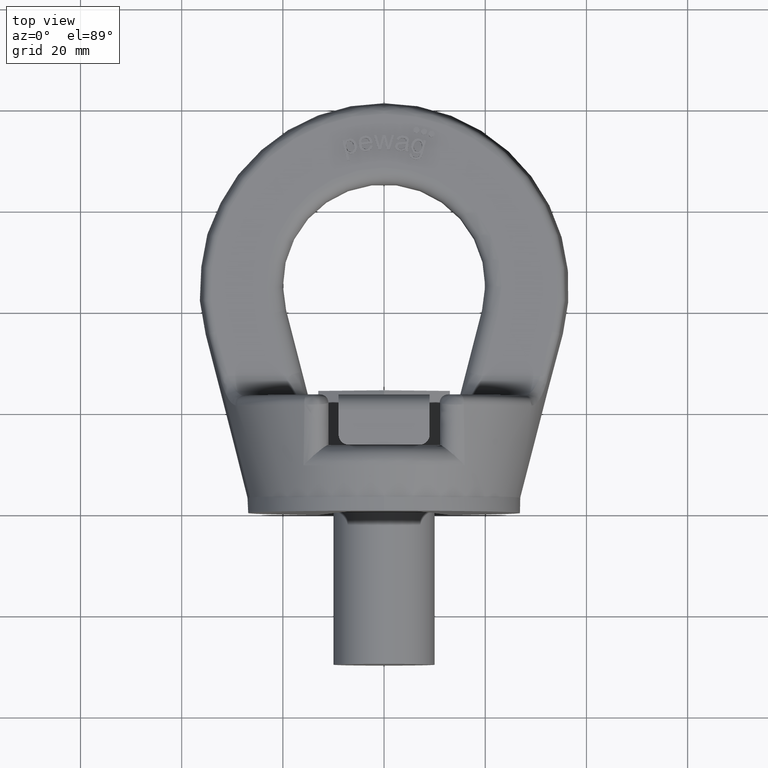
[diagram: clean part render]
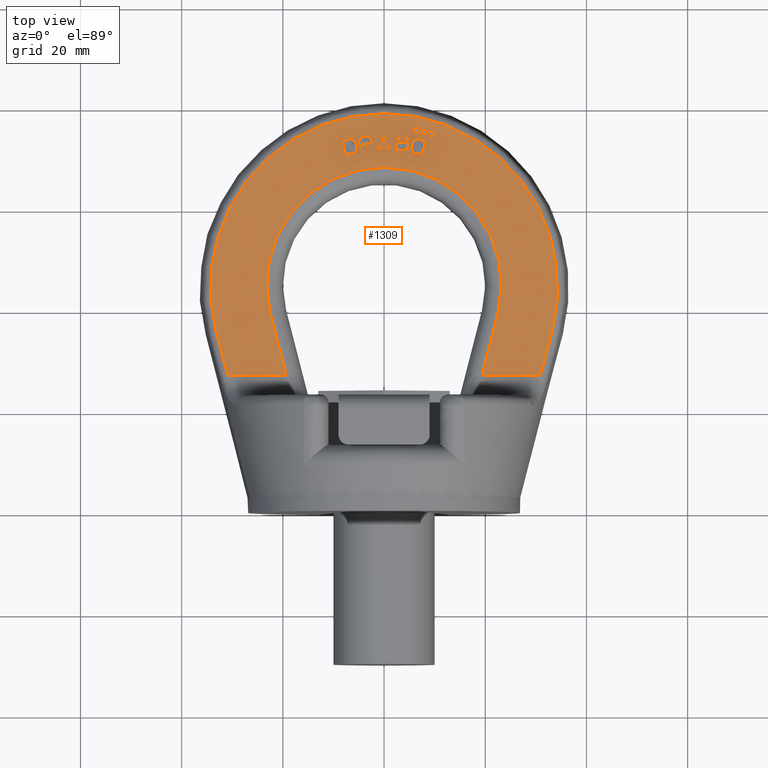
[diagram: same view with one face highlighted and labeled with its STEP entity id]
A machine part, top view. The second image highlights one B-rep face of the part: STEP entity #1309.
In plain terms, the highlighted planar face has unit normal (0, -0, -1).
Its self-contained STEP definition (entity closure, byte-faithful):
#1309=ADVANCED_FACE('',(#1756,#1757,#1758,#1759,#1760,#1761,#1762,#1763,
#1764),#1548,.F.);
#1548=PLANE('',#5122);
#1666=CIRCLE('',#5117,0.6);
#1667=CIRCLE('',#5118,0.6);
#1668=CIRCLE('',#5119,0.6);
#1669=CIRCLE('',#5120,23.2);
#1670=CIRCLE('',#5121,34.3081622941247);
#1756=FACE_BOUND('',#1812,.T.);
#1757=FACE_BOUND('',#1813,.T.);
#1758=FACE_BOUND('',#1814,.T.);
#1759=FACE_BOUND('',#1815,.T.);
#1760=FACE_BOUND('',#1816,.T.);
#1761=FACE_BOUND('',#1817,.T.);
#1762=FACE_BOUND('',#1818,.T.);
#1763=FACE_BOUND('',#1819,.T.);
#1764=FACE_BOUND('',#1820,.T.);
#1812=EDGE_LOOP('',(#2702,#2703,#2704,#2705,#2706,#2707,#2708));
#1813=EDGE_LOOP('',(#2709,#2710,#2711,#2712,#2713,#2714,#2715,#2716,#2717,
#2718,#2719,#2720,#2721,#2722,#2723));
#1814=EDGE_LOOP('',(#2724,#2725,#2726,#2727,#2728));
#1815=EDGE_LOOP('',(#2729));
#1816=EDGE_LOOP('',(#2730));
#1817=EDGE_LOOP('',(#2731));
#1818=EDGE_LOOP('',(#2732,#2733,#2734,#2735,#2736,#2737,#2738,#2739));
#1819=EDGE_LOOP('',(#2740,#2741,#2742,#2743,#2744,#2745));
#1820=EDGE_LOOP('',(#2746,#2747,#2748,#2749,#2750,#2751,#2752,#2753,#2754));
#2086=LINE('',#6270,#2366);
#2087=LINE('',#6302,#2367);
#2088=LINE('',#6304,#2368);
#2089=LINE('',#6305,#2369);
#2090=LINE('',#6308,#2370);
#2091=LINE('',#6310,#2371);
#2092=LINE('',#6312,#2372);
#2093=LINE('',#6326,#2373);
#2094=LINE('',#6328,#2374);
#2095=LINE('',#6344,#2375);
#2096=LINE('',#6346,#2376);
#2097=LINE('',#6348,#2377);
#2098=LINE('',#6350,#2378);
#2099=LINE('',#6352,#2379);
#2100=LINE('',#6368,#2380);
#2101=LINE('',#6391,#2381);
#2102=LINE('',#6401,#2382);
#2103=LINE('',#6403,#2383);
#2104=LINE('',#6417,#2384);
#2105=LINE('',#6419,#2385);
#2106=LINE('',#6420,#2386);
#2107=LINE('',#6423,#2387);
#2108=LINE('',#6425,#2388);
#2109=LINE('',#6427,#2389);
#2110=LINE('',#6429,#2390);
#2111=LINE('',#6453,#2391);
#2112=LINE('',#6498,#2392);
#2366=VECTOR('',#5384,1.);
#2367=VECTOR('',#5385,1.);
#2368=VECTOR('',#5386,1.);
#2369=VECTOR('',#5387,1.);
#2370=VECTOR('',#5388,1.);
#2371=VECTOR('',#5389,1.);
#2372=VECTOR('',#5390,1.);
#2373=VECTOR('',#5391,1.);
#2374=VECTOR('',#5392,1.);
#2375=VECTOR('',#5393,1.);
#2376=VECTOR('',#5394,1.);
#2377=VECTOR('',#5395,1.);
#2378=VECTOR('',#5396,1.);
#2379=VECTOR('',#5397,1.);
#2380=VECTOR('',#5398,1.);
#2381=VECTOR('',#5399,1.);
#2382=VECTOR('',#5408,1.);
#2383=VECTOR('',#5409,1.);
#2384=VECTOR('',#5412,1.);
#2385=VECTOR('',#5413,1.);
#2386=VECTOR('',#5414,1.);
#2387=VECTOR('',#5415,1.);
#2388=VECTOR('',#5416,1.);
#2389=VECTOR('',#5417,1.);
#2390=VECTOR('',#5418,1.);
#2391=VECTOR('',#5419,1.);
#2392=VECTOR('',#5420,1.);
#2702=ORIENTED_EDGE('',*,*,#4266,.T.);
#2703=ORIENTED_EDGE('',*,*,#4267,.T.);
#2704=ORIENTED_EDGE('',*,*,#4268,.T.);
#2705=ORIENTED_EDGE('',*,*,#4269,.T.);
#2706=ORIENTED_EDGE('',*,*,#4270,.T.);
#2707=ORIENTED_EDGE('',*,*,#4271,.T.);
#2708=ORIENTED_EDGE('',*,*,#4272,.T.);
#2709=ORIENTED_EDGE('',*,*,#4273,.T.);
#2710=ORIENTED_EDGE('',*,*,#4274,.T.);
#2711=ORIENTED_EDGE('',*,*,#4275,.T.);
#2712=ORIENTED_EDGE('',*,*,#4276,.T.);
#2713=ORIENTED_EDGE('',*,*,#4277,.T.);
#2714=ORIENTED_EDGE('',*,*,#4278,.T.);
#2715=ORIENTED_EDGE('',*,*,#4279,.T.);
#2716=ORIENTED_EDGE('',*,*,#4280,.T.);
#2717=ORIENTED_EDGE('',*,*,#4281,.T.);
#2718=ORIENTED_EDGE('',*,*,#4282,.T.);
#2719=ORIENTED_EDGE('',*,*,#4283,.T.);
#2720=ORIENTED_EDGE('',*,*,#4284,.T.);
#2721=ORIENTED_EDGE('',*,*,#4285,.T.);
#2722=ORIENTED_EDGE('',*,*,#4286,.T.);
#2723=ORIENTED_EDGE('',*,*,#4287,.T.);
#2724=ORIENTED_EDGE('',*,*,#4288,.T.);
#2725=ORIENTED_EDGE('',*,*,#4289,.T.);
#2726=ORIENTED_EDGE('',*,*,#4290,.T.);
#2727=ORIENTED_EDGE('',*,*,#4291,.T.);
#2728=ORIENTED_EDGE('',*,*,#4292,.T.);
#2729=ORIENTED_EDGE('',*,*,#4293,.F.);
#2730=ORIENTED_EDGE('',*,*,#4294,.F.);
#2731=ORIENTED_EDGE('',*,*,#4295,.F.);
#2732=ORIENTED_EDGE('',*,*,#4296,.T.);
#2733=ORIENTED_EDGE('',*,*,#4297,.T.);
#2734=ORIENTED_EDGE('',*,*,#4298,.T.);
#2735=ORIENTED_EDGE('',*,*,#4299,.T.);
#2736=ORIENTED_EDGE('',*,*,#4300,.T.);
#2737=ORIENTED_EDGE('',*,*,#4301,.T.);
#2738=ORIENTED_EDGE('',*,*,#4302,.T.);
#2739=ORIENTED_EDGE('',*,*,#4303,.T.);
#2740=ORIENTED_EDGE('',*,*,#4304,.T.);
#2741=ORIENTED_EDGE('',*,*,#4305,.T.);
#2742=ORIENTED_EDGE('',*,*,#4306,.T.);
#2743=ORIENTED_EDGE('',*,*,#4307,.T.);
#2744=ORIENTED_EDGE('',*,*,#4308,.T.);
#2745=ORIENTED_EDGE('',*,*,#4309,.T.);
#2746=ORIENTED_EDGE('',*,*,#4310,.T.);
#2747=ORIENTED_EDGE('',*,*,#4311,.T.);
#2748=ORIENTED_EDGE('',*,*,#4312,.T.);
#2749=ORIENTED_EDGE('',*,*,#4313,.T.);
#2750=ORIENTED_EDGE('',*,*,#4314,.T.);
#2751=ORIENTED_EDGE('',*,*,#4315,.T.);
#2752=ORIENTED_EDGE('',*,*,#4316,.T.);
#2753=ORIENTED_EDGE('',*,*,#4317,.T.);
#2754=ORIENTED_EDGE('',*,*,#4318,.T.);
#3878=VERTEX_POINT('',#6263);
#3879=VERTEX_POINT('',#6264);
#3880=VERTEX_POINT('',#6269);
#3881=VERTEX_POINT('',#6271);
#3882=VERTEX_POINT('',#6284);
#3883=VERTEX_POINT('',#6301);
#3884=VERTEX_POINT('',#6303);
#3885=VERTEX_POINT('',#6306);
#3886=VERTEX_POINT('',#6307);
#3887=VERTEX_POINT('',#6309);
#3888=VERTEX_POINT('',#6311);
#3889=VERTEX_POINT('',#6313);
#3890=VERTEX_POINT('',#6320);
#3891=VERTEX_POINT('',#6325);
#3892=VERTEX_POINT('',#6327);
#3893=VERTEX_POINT('',#6329);
#3894=VERTEX_POINT('',#6336);
#3895=VERTEX_POINT('',#6343);
#3896=VERTEX_POINT('',#6345);
#3897=VERTEX_POINT('',#6347);
#3898=VERTEX_POINT('',#6349);
#3899=VERTEX_POINT('',#6351);
#3900=VERTEX_POINT('',#6361);
#3901=VERTEX_POINT('',#6362);
#3902=VERTEX_POINT('',#6367);
#3903=VERTEX_POINT('',#6369);
#3904=VERTEX_POINT('',#6390);
#3905=VERTEX_POINT('',#6393);
#3906=VERTEX_POINT('',#6395);
#3907=VERTEX_POINT('',#6397);
#3908=VERTEX_POINT('',#6399);
#3909=VERTEX_POINT('',#6400);
#3910=VERTEX_POINT('',#6402);
#3911=VERTEX_POINT('',#6404);
#3912=VERTEX_POINT('',#6409);
#3913=VERTEX_POINT('',#6411);
#3914=VERTEX_POINT('',#6416);
#3915=VERTEX_POINT('',#6418);
#3916=VERTEX_POINT('',#6421);
#3917=VERTEX_POINT('',#6422);
#3918=VERTEX_POINT('',#6424);
#3919=VERTEX_POINT('',#6426);
#3920=VERTEX_POINT('',#6428);
#3921=VERTEX_POINT('',#6430);
#3922=VERTEX_POINT('',#6454);
#3923=VERTEX_POINT('',#6455);
#3924=VERTEX_POINT('',#6460);
#3925=VERTEX_POINT('',#6477);
#3926=VERTEX_POINT('',#6484);
#3927=VERTEX_POINT('',#6497);
#3928=VERTEX_POINT('',#6499);
#3929=VERTEX_POINT('',#6504);
#3930=VERTEX_POINT('',#6517);
#4266=EDGE_CURVE('',#3878,#3879,#4854,.T.);
#4267=EDGE_CURVE('',#3879,#3880,#4855,.T.);
#4268=EDGE_CURVE('',#3880,#3881,#2086,.T.);
#4269=EDGE_CURVE('',#3881,#3882,#4856,.T.);
#4270=EDGE_CURVE('',#3882,#3883,#4857,.T.);
#4271=EDGE_CURVE('',#3883,#3884,#2087,.T.);
#4272=EDGE_CURVE('',#3884,#3878,#2088,.T.);
#4273=EDGE_CURVE('',#3885,#3886,#2089,.T.);
#4274=EDGE_CURVE('',#3886,#3887,#2090,.T.);
#4275=EDGE_CURVE('',#3887,#3888,#2091,.T.);
#4276=EDGE_CURVE('',#3888,#3889,#2092,.T.);
#4277=EDGE_CURVE('',#3889,#3890,#4858,.T.);
#4278=EDGE_CURVE('',#3890,#3891,#4859,.T.);
#4279=EDGE_CURVE('',#3891,#3892,#2093,.T.);
#4280=EDGE_CURVE('',#3892,#3893,#2094,.T.);
#4281=EDGE_CURVE('',#3893,#3894,#4860,.T.);
#4282=EDGE_CURVE('',#3894,#3895,#4861,.T.);
#4283=EDGE_CURVE('',#3895,#3896,#2095,.T.);
#4284=EDGE_CURVE('',#3896,#3897,#2096,.T.);
#4285=EDGE_CURVE('',#3897,#3898,#2097,.T.);
#4286=EDGE_CURVE('',#3898,#3899,#2098,.T.);
#4287=EDGE_CURVE('',#3899,#3885,#2099,.T.);
#4288=EDGE_CURVE('',#3900,#3901,#4862,.T.);
#4289=EDGE_CURVE('',#3901,#3902,#4863,.T.);
#4290=EDGE_CURVE('',#3902,#3903,#2100,.T.);
#4291=EDGE_CURVE('',#3903,#3904,#4864,.T.);
#4292=EDGE_CURVE('',#3904,#3900,#2101,.T.);
#4293=EDGE_CURVE('',#3905,#3905,#1666,.T.);
#4294=EDGE_CURVE('',#3906,#3906,#1667,.T.);
#4295=EDGE_CURVE('',#3907,#3907,#1668,.T.);
#4296=EDGE_CURVE('',#3908,#3909,#1669,.T.);
#4297=EDGE_CURVE('',#3909,#3910,#2102,.T.);
#4298=EDGE_CURVE('',#3910,#3911,#2103,.T.);
#4299=EDGE_CURVE('',#3911,#3912,#4865,.T.);
#4300=EDGE_CURVE('',#3912,#3913,#1670,.T.);
#4301=EDGE_CURVE('',#3913,#3914,#4866,.T.);
#4302=EDGE_CURVE('',#3914,#3915,#2104,.T.);
#4303=EDGE_CURVE('',#3915,#3908,#2105,.T.);
#4304=EDGE_CURVE('',#3916,#3917,#2106,.T.);
#4305=EDGE_CURVE('',#3917,#3918,#2107,.T.);
#4306=EDGE_CURVE('',#3918,#3919,#2108,.T.);
#4307=EDGE_CURVE('',#3919,#3920,#2109,.T.);
#4308=EDGE_CURVE('',#3920,#3921,#2110,.T.);
#4309=EDGE_CURVE('',#3921,#3916,#4867,.T.);
#4310=EDGE_CURVE('',#3922,#3923,#2111,.T.);
#4311=EDGE_CURVE('',#3923,#3924,#4868,.T.);
#4312=EDGE_CURVE('',#3924,#3925,#4869,.T.);
#4313=EDGE_CURVE('',#3925,#3926,#4870,.T.);
#4314=EDGE_CURVE('',#3926,#3927,#4871,.T.);
#4315=EDGE_CURVE('',#3927,#3928,#2112,.T.);
#4316=EDGE_CURVE('',#3928,#3929,#4872,.T.);
#4317=EDGE_CURVE('',#3929,#3930,#4873,.T.);
#4318=EDGE_CURVE('',#3930,#3922,#4874,.T.);
#4854=B_SPLINE_CURVE_WITH_KNOTS('',3,(#6251,#6252,#6253,#6254,#6255,#6256,
#6257,#6258,#6259,#6260,#6261,#6262),.UNSPECIFIED.,.F.,.F.,(4,2,2,2,2,4),
(0.,0.305645754892089,0.470829306249211,0.636012857606333,0.802206343843955,
1.),.UNSPECIFIED.);
#4855=B_SPLINE_CURVE_WITH_KNOTS('',3,(#6265,#6266,#6267,#6268),
 .UNSPECIFIED.,.F.,.F.,(4,4),(0.,1.),.UNSPECIFIED.);
#4856=B_SPLINE_CURVE_WITH_KNOTS('',3,(#6272,#6273,#6274,#6275,#6276,#6277,
#6278,#6279,#6280,#6281,#6282,#6283),.UNSPECIFIED.,.F.,.F.,(4,2,2,2,2,4),
(0.,0.163304651309284,0.382303784248524,0.619375661168187,0.85644753808786,
1.),.UNSPECIFIED.);
#4857=B_SPLINE_CURVE_WITH_KNOTS('',3,(#6285,#6286,#6287,#6288,#6289,#6290,
#6291,#6292,#6293,#6294,#6295,#6296,#6297,#6298,#6299,#6300),
 .UNSPECIFIED.,.F.,.F.,(4,2,2,2,2,2,2,4),(0.,0.139503666745451,0.312880428291714,
0.486257189837977,0.605370995480449,0.72385410568907,0.842337215897691,
1.),.UNSPECIFIED.);
#4858=B_SPLINE_CURVE_WITH_KNOTS('',3,(#6314,#6315,#6316,#6317,#6318,#6319),
 .UNSPECIFIED.,.F.,.F.,(4,2,4),(0.,0.728909607654966,1.),.UNSPECIFIED.);
#4859=B_SPLINE_CURVE_WITH_KNOTS('',3,(#6321,#6322,#6323,#6324),
 .UNSPECIFIED.,.F.,.F.,(4,4),(0.,1.),.UNSPECIFIED.);
#4860=B_SPLINE_CURVE_WITH_KNOTS('',3,(#6330,#6331,#6332,#6333,#6334,#6335),
 .UNSPECIFIED.,.F.,.F.,(4,2,4),(0.,0.752082276025117,1.),.UNSPECIFIED.);
#4861=B_SPLINE_CURVE_WITH_KNOTS('',3,(#6337,#6338,#6339,#6340,#6341,#6342),
 .UNSPECIFIED.,.F.,.F.,(4,2,4),(0.,0.250451922487273,1.),.UNSPECIFIED.);
#4862=B_SPLINE_CURVE_WITH_KNOTS('',3,(#6353,#6354,#6355,#6356,#6357,#6358,
#6359,#6360),.UNSPECIFIED.,.F.,.F.,(4,2,2,4),(0.,0.36347796861322,0.728087675912443,
1.),.UNSPECIFIED.);
#4863=B_SPLINE_CURVE_WITH_KNOTS('',3,(#6363,#6364,#6365,#6366),
 .UNSPECIFIED.,.F.,.F.,(4,4),(0.,1.),.UNSPECIFIED.);
#4864=B_SPLINE_CURVE_WITH_KNOTS('',3,(#6370,#6371,#6372,#6373,#6374,#6375,
#6376,#6377,#6378,#6379,#6380,#6381,#6382,#6383,#6384,#6385,#6386,#6387,
#6388,#6389),.UNSPECIFIED.,.F.,.F.,(4,2,2,2,2,2,2,2,2,4),(0.,0.102921203122042,
0.206156274885328,0.336063021724234,0.465707475917732,0.599570296299742,
0.733433116681749,0.862845255056168,0.992257393430591,1.),.UNSPECIFIED.);
#4865=B_SPLINE_CURVE_WITH_KNOTS('',3,(#6405,#6406,#6407,#6408),
 .UNSPECIFIED.,.F.,.F.,(4,4),(0.,1.),.UNSPECIFIED.);
#4866=B_SPLINE_CURVE_WITH_KNOTS('',3,(#6412,#6413,#6414,#6415),
 .UNSPECIFIED.,.F.,.F.,(4,4),(0.,1.),.UNSPECIFIED.);
#4867=B_SPLINE_CURVE_WITH_KNOTS('',3,(#6431,#6432,#6433,#6434,#6435,#6436,
#6437,#6438,#6439,#6440,#6441,#6442,#6443,#6444,#6445,#6446,#6447,#6448,
#6449,#6450,#6451,#6452),.UNSPECIFIED.,.F.,.F.,(4,2,2,2,2,2,2,2,2,2,4),
(0.,0.0830854503763923,0.165678296755082,0.27327222095651,0.380460889370536,
0.487248686046698,0.601946689884058,0.717055250849212,0.831909514623434,
0.91582130550871,1.),.UNSPECIFIED.);
#4868=B_SPLINE_CURVE_WITH_KNOTS('',3,(#6456,#6457,#6458,#6459),
 .UNSPECIFIED.,.F.,.F.,(4,4),(0.,1.),.UNSPECIFIED.);
#4869=B_SPLINE_CURVE_WITH_KNOTS('',3,(#6461,#6462,#6463,#6464,#6465,#6466,
#6467,#6468,#6469,#6470,#6471,#6472,#6473,#6474,#6475,#6476),
 .UNSPECIFIED.,.F.,.F.,(4,2,2,2,2,2,2,4),(0.,0.121639465164564,0.243930904991192,
0.445161792748237,0.646392680505282,0.763565096161286,0.881519242448381,
1.),.UNSPECIFIED.);
#4870=B_SPLINE_CURVE_WITH_KNOTS('',3,(#6478,#6479,#6480,#6481,#6482,#6483),
 .UNSPECIFIED.,.F.,.F.,(4,2,4),(0.,0.329344693449402,1.),.UNSPECIFIED.);
#4871=B_SPLINE_CURVE_WITH_KNOTS('',3,(#6485,#6486,#6487,#6488,#6489,#6490,
#6491,#6492,#6493,#6494,#6495,#6496),.UNSPECIFIED.,.F.,.F.,(4,2,2,2,2,4),
(0.,0.0173977322143003,0.217983350684967,0.49067503531644,0.745337517658224,
1.),.UNSPECIFIED.);
#4872=B_SPLINE_CURVE_WITH_KNOTS('',3,(#6500,#6501,#6502,#6503),
 .UNSPECIFIED.,.F.,.F.,(4,4),(0.,1.),.UNSPECIFIED.);
#4873=B_SPLINE_CURVE_WITH_KNOTS('',3,(#6505,#6506,#6507,#6508,#6509,#6510,
#6511,#6512,#6513,#6514,#6515,#6516),.UNSPECIFIED.,.F.,.F.,(4,2,2,2,2,4),
(0.,0.201730292707493,0.402155128097318,0.601755169925868,0.80019954507806,
1.),.UNSPECIFIED.);
#4874=B_SPLINE_CURVE_WITH_KNOTS('',3,(#6518,#6519,#6520,#6521,#6522,#6523,
#6524,#6525,#6526,#6527),.UNSPECIFIED.,.F.,.F.,(4,2,2,2,4),(0.,0.161403604805119,
0.323059797411187,0.661780038481083,1.),.UNSPECIFIED.);
#5117=AXIS2_PLACEMENT_3D('',#6392,#5400,#5401);
#5118=AXIS2_PLACEMENT_3D('',#6394,#5402,#5403);
#5119=AXIS2_PLACEMENT_3D('',#6396,#5404,#5405);
#5120=AXIS2_PLACEMENT_3D('',#6398,#5406,#5407);
#5121=AXIS2_PLACEMENT_3D('',#6410,#5410,#5411);
#5122=AXIS2_PLACEMENT_3D('',#6528,#5421,#5422);
#5384=DIRECTION('',(0.926036898244061,-0.377432991523685,4.81427846326685E-17));
#5385=DIRECTION('',(0.24044171176868,0.970663578816959,-1.23811242459518E-16));
#5386=DIRECTION('',(0.970663578816965,-0.240441711768658,3.06691089712603E-17));
#5387=DIRECTION('',(-0.258675883018079,-0.965964175083537,1.2321181849044E-16));
#5388=DIRECTION('',(-0.999999995678886,9.29635860319111E-5,-1.18578025809225E-20));
#5389=DIRECTION('',(-0.297319028478966,0.954778191678216,-1.21785010548153E-16));
#5390=DIRECTION('',(0.999999995678886,-9.29635860360413E-5,1.18578025814493E-20));
#5391=DIRECTION('',(0.26668775938768,0.963782983348834,-1.22933600511925E-16));
#5392=DIRECTION('',(0.999999995678886,-9.29635860331523E-5,1.18578025810808E-20));
#5393=DIRECTION('',(0.999999995678886,-9.2963586044615E-5,1.18578025825429E-20));
#5394=DIRECTION('',(-0.303109223404765,-0.952955822001713,1.21552561470231E-16));
#5395=DIRECTION('',(-0.999999995678886,9.29635860121844E-5,-1.18578025784063E-20));
#5396=DIRECTION('',(-0.260553429481471,0.965459429694197,-1.23147436602478E-16));
#5397=DIRECTION('',(-0.226101851815541,0.974103666251998,-1.24250036609001E-16));
#5398=DIRECTION('',(0.99995564898741,0.00941807083051332,-1.20130504177234E-18));
#5399=DIRECTION('',(-0.991600377783165,-0.129339440157616,1.64976590596407E-17));
#5400=DIRECTION('',(0.,1.27553196763001E-16,1.));
#5401=DIRECTION('',(0.,1.00000000000001,0.));
#5402=DIRECTION('',(0.,1.27553196763001E-16,1.));
#5403=DIRECTION('',(0.,1.00000000000001,0.));
#5404=DIRECTION('',(0.,1.27553196763001E-16,1.));
#5405=DIRECTION('',(0.,1.00000000000001,0.));
#5406=DIRECTION('',(0.,-1.27553196763001E-16,-1.));
#5407=DIRECTION('',(0.,1.,-1.4954512723938E-16));
#5408=DIRECTION('',(-0.249489301818012,-0.968377554613055,1.23519652764432E-16));
#5409=DIRECTION('',(1.,0.,0.));
#5410=DIRECTION('',(0.,1.27553196763001E-16,1.));
#5411=DIRECTION('',(0.,1.,-1.51688988273838E-16));
#5412=DIRECTION('',(1.,0.,0.));
#5413=DIRECTION('',(-0.249489301818012,0.968377554613055,-1.23519652764432E-16));
#5414=DIRECTION('',(0.240261234879317,-0.97070826668689,1.23816942540184E-16));
#5415=DIRECTION('',(-0.970708266686891,-0.24026123487931,3.06460885670821E-17));
#5416=DIRECTION('',(-0.240261234879319,0.970708266686889,-1.23816942540184E-16));
#5417=DIRECTION('',(0.970708266686891,0.240261234879313,-3.06460885670825E-17));
#5418=DIRECTION('',(0.240261234879314,-0.970708266686891,1.23816942540184E-16));
#5419=DIRECTION('',(-0.99157631292765,0.129523803375314,-1.65211751774237E-17));
#5420=DIRECTION('',(-0.965560779386224,0.260177595713135,-3.31864840593219E-17));
#5421=DIRECTION('',(0.,-1.27553196763001E-16,-1.));
#5422=DIRECTION('',(0.,1.,-1.28369537222284E-16));
#6251=CARTESIAN_POINT('',(8.27434339115758,73.4085009868514,8.));
#6252=CARTESIAN_POINT('',(8.07357548447737,72.5980006232652,8.));
#6253=CARTESIAN_POINT('',(7.87280757779716,71.7875002596789,8.));
#6254=CARTESIAN_POINT('',(7.56353642743316,70.5389721260663,8.));
#6255=CARTESIAN_POINT('',(7.44129309872869,70.2403404994143,8.));
#6256=CARTESIAN_POINT('',(7.16883419307576,69.9198830123601,8.));
#6257=CARTESIAN_POINT('',(6.98940056581616,69.8104161516886,8.));
#6258=CARTESIAN_POINT('',(6.54375091632207,69.6966324594976,8.));
#6259=CARTESIAN_POINT('',(6.28825700489696,69.703676575954,8.));
#6260=CARTESIAN_POINT('',(5.6596343761219,69.8593918043995,8.));
#6261=CARTESIAN_POINT('',(5.40242663133442,70.003224048579,8.));
#6262=CARTESIAN_POINT('',(5.22960993360185,70.2062715800014,8.));
#6263=CARTESIAN_POINT('',(8.27434339115758,73.4085009868514,8.));
#6264=CARTESIAN_POINT('',(5.22960993360185,70.2062715800014,8.));
#6265=CARTESIAN_POINT('',(5.22960993360185,70.2062715800014,8.));
#6266=CARTESIAN_POINT('',(5.05679323586928,70.4093191114237,8.));
#6267=CARTESIAN_POINT('',(5.01207145875811,70.6618103112016,8.));
#6268=CARTESIAN_POINT('',(5.09418791585387,70.9630022651119,8.));
#6269=CARTESIAN_POINT('',(5.09418791585387,70.9630022651119,8.));
#6270=CARTESIAN_POINT('',(56.3231636437959,50.0831587098981,8.00000000000001));
#6271=CARTESIAN_POINT('',(5.5491835131004,70.7775557135495,8.));
#6272=CARTESIAN_POINT('',(5.5491835131004,70.7775557135495,8.));
#6273=CARTESIAN_POINT('',(5.53295618145949,70.6297696631202,8.));
#6274=CARTESIAN_POINT('',(5.56169703073023,70.5119586514957,8.));
#6275=CARTESIAN_POINT('',(5.73425329869985,70.3063305537478,8.));
#6276=CARTESIAN_POINT('',(5.88768540274292,70.2214214860374,8.));
#6277=CARTESIAN_POINT('',(6.32125310008135,70.1140230406948,8.));
#6278=CARTESIAN_POINT('',(6.50489951108708,70.1149173211513,8.));
#6279=CARTESIAN_POINT('',(6.79327112090337,70.2311339071627,8.));
#6280=CARTESIAN_POINT('',(6.90689908824658,70.3347630641812,8.));
#6281=CARTESIAN_POINT('',(7.03825244906068,70.5730340798784,8.));
#6282=CARTESIAN_POINT('',(7.1006563298978,70.7748652236077,8.));
#6283=CARTESIAN_POINT('',(7.17564527398586,71.0862563737519,8.));
#6284=CARTESIAN_POINT('',(7.17564527398586,71.0862563737519,8.));
#6285=CARTESIAN_POINT('',(7.17564527398586,71.0862563737519,8.));
#6286=CARTESIAN_POINT('',(6.90239164109749,70.89250049743,8.));
#6287=CARTESIAN_POINT('',(6.6083498829043,70.8356697996431,8.));
#6288=CARTESIAN_POINT('',(5.89887546907778,71.0114127102038,8.));
#6289=CARTESIAN_POINT('',(5.62810545469386,71.2260736451176,8.));
#6290=CARTESIAN_POINT('',(5.33584367423884,71.8909333125959,8.));
#6291=CARTESIAN_POINT('',(5.31061958887863,72.2524490415041,8.));
#6292=CARTESIAN_POINT('',(5.4737435130563,72.9109805869179,8.));
#6293=CARTESIAN_POINT('',(5.58452896762994,73.1460354337461,8.));
#6294=CARTESIAN_POINT('',(5.89447899434467,73.5508063519342,8.));
#6295=CARTESIAN_POINT('',(6.08110590239848,73.6913958210144,8.));
#6296=CARTESIAN_POINT('',(6.51808440001605,73.8445956410531,8.));
#6297=CARTESIAN_POINT('',(6.75390597766466,73.8525956030073,8.));
#6298=CARTESIAN_POINT('',(7.34513465585342,73.70614317754,8.));
#6299=CARTESIAN_POINT('',(7.58984738828909,73.5032078865876,8.));
#6300=CARTESIAN_POINT('',(7.74248125878241,73.1797092712376,8.));
#6301=CARTESIAN_POINT('',(7.74248125878241,73.1797092712376,8.));
#6302=CARTESIAN_POINT('',(15.6742053116846,105.20009208562,8.));
#6303=CARTESIAN_POINT('',(7.82662663143515,73.5194042765642,8.));
#6304=CARTESIAN_POINT('',(65.1524213197516,59.3193121909451,8.));
#6305=CARTESIAN_POINT('',(9.14655977717481,108.099335005828,8.));
#6306=CARTESIAN_POINT('',(-0.0129316652247377,73.8953709867937,8.));
#6307=CARTESIAN_POINT('',(-0.6097419614308,71.6667234656959,8.));
#6308=CARTESIAN_POINT('',(72.9982020731392,71.6598806072285,8.));
#6309=CARTESIAN_POINT('',(-1.13137923385623,71.6667719589676,8.));
#6310=CARTESIAN_POINT('',(-0.0664641933780241,68.2470189016531,8.));
#6311=CARTESIAN_POINT('',(-2.0338234352698,74.5647837247268,8.));
#6312=CARTESIAN_POINT('',(72.9984714749049,74.5578084534933,8.));
#6313=CARTESIAN_POINT('',(-1.51739212364699,74.5647357154199,8.));
#6314=CARTESIAN_POINT('',(-1.51739212364699,74.5647357154199,8.));
#6315=CARTESIAN_POINT('',(-1.36091808013349,74.007033778543,8.));
#6316=CARTESIAN_POINT('',(-1.20444403661998,73.4493318416661,8.));
#6317=CARTESIAN_POINT('',(-0.98977538378535,72.68421373783,8.));
#6318=CARTESIAN_POINT('',(-0.93139502957195,72.4768497300493,8.));
#6319=CARTESIAN_POINT('',(-0.87310754780469,72.2694596426793,8.));
#6320=CARTESIAN_POINT('',(-0.87310754780469,72.2694596426793,8.));
#6321=CARTESIAN_POINT('',(-0.87310754780469,72.2694596426793,8.));
#6322=CARTESIAN_POINT('',(-0.865816348848716,72.3001573533306,8.));
#6323=CARTESIAN_POINT('',(-0.814779383073031,72.4996921337884,8.));
#6324=CARTESIAN_POINT('',(-0.721037937765908,72.867040801239,8.));
#6325=CARTESIAN_POINT('',(-0.721037937765908,72.867040801239,8.));
#6326=CARTESIAN_POINT('',(9.18287496127966,108.65879495818,8.));
#6327=CARTESIAN_POINT('',(-0.251302456442698,74.5646180151837,8.));
#6328=CARTESIAN_POINT('',(72.998471474905,74.5578084534935,8.));
#6329=CARTESIAN_POINT('',(0.262005278698517,74.5645702962557,8.));
#6330=CARTESIAN_POINT('',(0.262005278698517,74.5645702962557,8.));
#6331=CARTESIAN_POINT('',(0.409108339093277,74.0041404848975,8.));
#6332=CARTESIAN_POINT('',(0.556211399488038,73.4437106735393,8.));
#6333=CARTESIAN_POINT('',(0.75180577138605,72.698539793672,8.));
#6334=CARTESIAN_POINT('',(0.80184634167395,72.5142088542864,8.));
#6335=CARTESIAN_POINT('',(0.851112282569527,72.329672850339,8.));
#6336=CARTESIAN_POINT('',(0.851112282569527,72.329672850339,8.));
#6337=CARTESIAN_POINT('',(0.851112282569527,72.329672850339,8.));
#6338=CARTESIAN_POINT('',(0.907354004196459,72.5162456051468,8.));
#6339=CARTESIAN_POINT('',(0.963595725823392,72.7028183599546,8.));
#6340=CARTESIAN_POINT('',(1.18815667575897,73.4477627506979,8.));
#6341=CARTESIAN_POINT('',(1.35659339543092,74.0060989625197,8.));
#6342=CARTESIAN_POINT('',(1.52497136942122,74.5644528863984,8.));
#6343=CARTESIAN_POINT('',(1.52497136942122,74.5644528863984,8.));
#6344=CARTESIAN_POINT('',(72.9984714749048,74.5578084534927,8.));
#6345=CARTESIAN_POINT('',(2.01120810838866,74.5644076840873,8.));
#6346=CARTESIAN_POINT('',(13.2807335501375,109.995067827906,8.));
#6347=CARTESIAN_POINT('',(1.08948364455394,71.6665654995894,8.));
#6348=CARTESIAN_POINT('',(72.9982020731396,71.6598806072299,8.));
#6349=CARTESIAN_POINT('',(0.569928756449546,71.6666137992752,8.));
#6350=CARTESIAN_POINT('',(0.623681826476014,71.4674361932258,8.));
#6351=CARTESIAN_POINT('',(0.101553620861823,73.4021395691235,8.));
#6352=CARTESIAN_POINT('',(-0.0475982287259785,74.0447232646798,8.));
#6353=CARTESIAN_POINT('',(-4.46936810288726,72.6438999517978,8.));
#6354=CARTESIAN_POINT('',(-4.40962308695014,72.3307570979705,8.));
#6355=CARTESIAN_POINT('',(-4.28726839299818,72.1011129137405,8.));
#6356=CARTESIAN_POINT('',(-3.91676373703312,71.8083668402992,8.));
#6357=CARTESIAN_POINT('',(-3.70193014911682,71.7512671831291,8.));
#6358=CARTESIAN_POINT('',(-3.27656217291153,71.8067500743583,8.));
#6359=CARTESIAN_POINT('',(-3.12778331023684,71.8736256407704,8.));
#6360=CARTESIAN_POINT('',(-3.01090373012027,71.9838100115434,8.));
#6361=CARTESIAN_POINT('',(-4.46936810288726,72.6438999517978,8.));
#6362=CARTESIAN_POINT('',(-3.01090373012027,71.9838100115434,8.));
#6363=CARTESIAN_POINT('',(-3.01090373012027,71.9838100115434,8.));
#6364=CARTESIAN_POINT('',(-2.89518894695993,72.0948743995536,8.));
#6365=CARTESIAN_POINT('',(-2.81243224965396,72.2573650675167,8.));
#6366=CARTESIAN_POINT('',(-2.76393078557063,72.4731767171189,8.));
#6367=CARTESIAN_POINT('',(-2.76393078557063,72.4731767171189,8.));
#6368=CARTESIAN_POINT('',(73.1677589302026,73.1883384672905,8.));
#6369=CARTESIAN_POINT('',(-2.24376392451967,72.4780759027439,8.));
#6370=CARTESIAN_POINT('',(-2.24376392451967,72.4780759027439,8.));
#6371=CARTESIAN_POINT('',(-2.28694558202141,72.1731787028085,8.));
#6372=CARTESIAN_POINT('',(-2.40687148822156,71.9253479560844,8.));
#6373=CARTESIAN_POINT('',(-2.80081156359098,71.5432376140093,8.));
#6374=CARTESIAN_POINT('',(-3.06941677853102,71.4261497987623,8.));
#6375=CARTESIAN_POINT('',(-3.8365245608624,71.3260920604534,8.));
#6376=CARTESIAN_POINT('',(-4.19197552968391,71.4107861400315,8.));
#6377=CARTESIAN_POINT('',(-4.76093299418428,71.8643979100914,8.));
#6378=CARTESIAN_POINT('',(-4.93355073964896,72.2097892442468,8.));
#6379=CARTESIAN_POINT('',(-5.05756307572232,73.1605485729578,8.));
#6380=CARTESIAN_POINT('',(-4.97954180323884,73.5525458861287,8.));
#6381=CARTESIAN_POINT('',(-4.54325931331541,74.1522568400451,8.));
#6382=CARTESIAN_POINT('',(-4.2313791201077,74.3291540278519,8.));
#6383=CARTESIAN_POINT('',(-3.43742772762745,74.4327131136656,8.));
#6384=CARTESIAN_POINT('',(-3.10029609577725,74.3435656553785,8.));
#6385=CARTESIAN_POINT('',(-2.53642894195904,73.8846287413219,8.));
#6386=CARTESIAN_POINT('',(-2.36462450750119,73.5334730361912,8.));
#6387=CARTESIAN_POINT('',(-2.29897870313365,73.0301895494882,8.));
#6388=CARTESIAN_POINT('',(-2.29432008196049,72.9864234509696,8.));
#6389=CARTESIAN_POINT('',(-2.28884100156308,72.9283171029533,8.));
#6390=CARTESIAN_POINT('',(-2.28884100156308,72.9283171029533,8.));
#6391=CARTESIAN_POINT('',(74.0582644879837,82.8866552630782,8.));
#6392=CARTESIAN_POINT('',(6.38264742984435,75.5401671866135,8.));
#6393=CARTESIAN_POINT('',(6.38264742984435,76.1401671866135,8.));
#6394=CARTESIAN_POINT('',(7.90120021519117,75.1829593505916,8.));
#6395=CARTESIAN_POINT('',(7.90120021519117,75.7829593505916,8.));
#6396=CARTESIAN_POINT('',(9.4,74.7502941161932,8.));
#6397=CARTESIAN_POINT('',(9.4,75.3502941161932,8.));
#6398=CARTESIAN_POINT('',(0.,45.,8.00000000000001));
#6399=CARTESIAN_POINT('',(-22.4663592670229,39.2118481978221,8.00000000000001));
#6400=CARTESIAN_POINT('',(22.4663592670229,39.2118481978221,8.00000000000001));
#6401=CARTESIAN_POINT('',(19.1144546479733,26.2016342341824,8.00000000000001));
#6402=CARTESIAN_POINT('',(19.3201427254803,27.,8.00000000000001));
#6403=CARTESIAN_POINT('',(73.,27.,8.00000000000001));
#6404=CARTESIAN_POINT('',(30.8746750479562,27.,8.00000000000001));
#6405=CARTESIAN_POINT('',(30.8746750479562,27.,8.00000000000001));
#6406=CARTESIAN_POINT('',(31.6457731800159,29.9306687932187,8.00000000000001));
#6407=CARTESIAN_POINT('',(32.4157636965313,32.8616291571608,8.00000000000001));
#6408=CARTESIAN_POINT('',(33.1848621373349,35.7928233665514,8.00000000000001));
#6409=CARTESIAN_POINT('',(33.1848621373349,35.7928233665514,8.00000000000001));
#6410=CARTESIAN_POINT('',(-1.38050658413677E-30,44.5,8.00000000000001));
#6411=CARTESIAN_POINT('',(-33.1848621373349,35.7928233665515,8.00000000000001));
#6412=CARTESIAN_POINT('',(-33.1848621373349,35.7928233665515,8.00000000000001));
#6413=CARTESIAN_POINT('',(-32.4157636965314,32.8616291571609,8.00000000000001));
#6414=CARTESIAN_POINT('',(-31.645773180016,29.9306687932187,8.00000000000001));
#6415=CARTESIAN_POINT('',(-30.8746750479564,27.,8.00000000000001));
#6416=CARTESIAN_POINT('',(-30.8746750479564,27.,8.00000000000001));
#6417=CARTESIAN_POINT('',(73.,27.,8.00000000000001));
#6418=CARTESIAN_POINT('',(-19.3201427254803,27.,8.00000000000001));
#6419=CARTESIAN_POINT('',(-22.4663592670229,39.2118481978221,8.00000000000001));
#6420=CARTESIAN_POINT('',(-7.20008119534558,71.1495761325059,8.));
#6421=CARTESIAN_POINT('',(-7.16475738105177,71.0068601485348,8.));
#6422=CARTESIAN_POINT('',(-6.82596998615414,69.638084511293,8.));
#6423=CARTESIAN_POINT('',(73.3741112091916,89.4885083787864,8.));
#6424=CARTESIAN_POINT('',(-7.31110303021969,69.518008615941,8.));
#6425=CARTESIAN_POINT('',(-7.68521423941111,71.0295002371539,8.));
#6426=CARTESIAN_POINT('',(-8.27411480512099,73.40878813051,8.));
#6427=CARTESIAN_POINT('',(72.4110994342902,93.3792878933557,8.));
#6428=CARTESIAN_POINT('',(-7.83244159625298,73.5181072269034,8.));
#6429=CARTESIAN_POINT('',(-7.24354103054321,71.1388193335476,8.));
#6430=CARTESIAN_POINT('',(-7.74196716858801,73.1525706271174,8.));
#6431=CARTESIAN_POINT('',(-7.74196716858801,73.1525706271174,8.));
#6432=CARTESIAN_POINT('',(-7.67326873979466,73.3213729737808,8.));
#6433=CARTESIAN_POINT('',(-7.58156983798796,73.4579185188622,8.));
#6434=CARTESIAN_POINT('',(-7.35486652303359,73.6653788569256,8.));
#6435=CARTESIAN_POINT('',(-7.20436430209649,73.7410295289314,8.));
#6436=CARTESIAN_POINT('',(-6.77380872548831,73.8475968860563,8.));
#6437=CARTESIAN_POINT('',(-6.54203141469326,73.8385524461402,8.));
#6438=CARTESIAN_POINT('',(-6.10792188225498,73.6850606774646,8.));
#6439=CARTESIAN_POINT('',(-5.9233459738623,73.5447211923004,8.));
#6440=CARTESIAN_POINT('',(-5.62228164904322,73.141545329279,8.));
#6441=CARTESIAN_POINT('',(-5.51223242224889,72.9064577111844,8.));
#6442=CARTESIAN_POINT('',(-5.37455394536742,72.3502063636841,8.));
#6443=CARTESIAN_POINT('',(-5.3629420207375,72.0779452815134,8.));
#6444=CARTESIAN_POINT('',(-5.459754555242,71.5660905862769,8.));
#6445=CARTESIAN_POINT('',(-5.56919911864198,71.3511792283072,8.));
#6446=CARTESIAN_POINT('',(-5.90808723427736,71.0061582628115,8.));
#6447=CARTESIAN_POINT('',(-6.10368918238332,70.8931521795531,8.));
#6448=CARTESIAN_POINT('',(-6.48674214842674,70.7983422538482,8.));
#6449=CARTESIAN_POINT('',(-6.6406411120285,70.7960918884837,8.));
#6450=CARTESIAN_POINT('',(-6.93076251174171,70.8657653596914,8.));
#6451=CARTESIAN_POINT('',(-7.05655748045463,70.9250625982898,8.));
#6452=CARTESIAN_POINT('',(-7.16475738105177,71.0068601485348,8.));
#6453=CARTESIAN_POINT('',(69.3213839204155,62.8381604476111,8.));
#6454=CARTESIAN_POINT('',(4.78217833438281,71.2685386901522,8.));
#6455=CARTESIAN_POINT('',(4.26493516887048,71.336103133951,8.));
#6456=CARTESIAN_POINT('',(4.26493516887048,71.336103133951,8.));
#6457=CARTESIAN_POINT('',(4.2264354621162,71.4432974149822,8.));
#6458=CARTESIAN_POINT('',(4.20890504535555,71.5663281077973,8.));
#6459=CARTESIAN_POINT('',(4.21207884045423,71.7031658927486,8.));
#6460=CARTESIAN_POINT('',(4.21207884045423,71.7031658927486,8.));
#6461=CARTESIAN_POINT('',(4.21207884045423,71.7031658927486,8.));
#6462=CARTESIAN_POINT('',(4.00829441644147,71.5739571914645,8.));
#6463=CARTESIAN_POINT('',(3.81756866179979,71.4884495082482,8.));
#6464=CARTESIAN_POINT('',(3.46154800301095,71.4066468567667,8.));
#6465=CARTESIAN_POINT('',(3.27565225492654,71.3992811160161,8.));
#6466=CARTESIAN_POINT('',(2.75944151090225,71.4667107006457,8.));
#6467=CARTESIAN_POINT('',(2.52276574436227,71.5760561887167,8.));
#6468=CARTESIAN_POINT('',(2.21822884376858,71.9295557377215,8.));
#6469=CARTESIAN_POINT('',(2.15721801780019,72.1377279137801,8.));
#6470=CARTESIAN_POINT('',(2.20692016798258,72.5182253477508,8.));
#6471=CARTESIAN_POINT('',(2.25679011712857,72.6427716519726,8.));
#6472=CARTESIAN_POINT('',(2.41762887621601,72.8578368687203,8.));
#6473=CARTESIAN_POINT('',(2.51511124868685,72.9402918890764,8.));
#6474=CARTESIAN_POINT('',(2.74452660013721,73.0530548310555,8.));
#6475=CARTESIAN_POINT('',(2.86976866520057,73.0910718404518,8.));
#6476=CARTESIAN_POINT('',(3.0066900220883,73.1103376204478,8.));
#6477=CARTESIAN_POINT('',(3.0066900220883,73.1103376204478,8.));
#6478=CARTESIAN_POINT('',(3.0066900220883,73.1103376204478,8.));
#6479=CARTESIAN_POINT('',(3.10808354013174,73.1228924949662,8.));
#6480=CARTESIAN_POINT('',(3.25786832904631,73.1280943287056,8.));
#6481=CARTESIAN_POINT('',(3.86273151717706,73.1211530715531,8.));
#6482=CARTESIAN_POINT('',(4.16528291755921,73.1375286838012,8.));
#6483=CARTESIAN_POINT('',(4.36269855016989,73.1777876845578,8.));
#6484=CARTESIAN_POINT('',(4.36269855016989,73.1777876845578,8.));
#6485=CARTESIAN_POINT('',(4.36269855016989,73.1777876845578,8.));
#6486=CARTESIAN_POINT('',(4.37351097157809,73.2444855145981,8.));
#6487=CARTESIAN_POINT('',(4.38011003388656,73.2869663680336,8.));
#6488=CARTESIAN_POINT('',(4.40834085519014,73.503088910529,8.));
#6489=CARTESIAN_POINT('',(4.37913985800705,73.6493154880161,8.));
#6490=CARTESIAN_POINT('',(4.18491989899928,73.8694786188156,8.));
#6491=CARTESIAN_POINT('',(4.0034078244789,73.9481325372626,8.));
#6492=CARTESIAN_POINT('',(3.52023456807217,74.0112466284758,8.));
#6493=CARTESIAN_POINT('',(3.34368357743714,73.9940615174399,8.));
#6494=CARTESIAN_POINT('',(3.09973936340847,73.8628748458202,8.));
#6495=CARTESIAN_POINT('',(2.9996225964512,73.7314763448426,8.));
#6496=CARTESIAN_POINT('',(2.91929632657491,73.5345423970358,8.));
#6497=CARTESIAN_POINT('',(2.91929632657491,73.5345423970358,8.));
#6498=CARTESIAN_POINT('',(63.8684454948178,57.1113369086823,8.));
#6499=CARTESIAN_POINT('',(2.44357314897793,73.6627295761493,8.));
#6500=CARTESIAN_POINT('',(2.44357314897793,73.6627295761493,8.));
#6501=CARTESIAN_POINT('',(2.51460762546178,73.8608772564795,8.));
#6502=CARTESIAN_POINT('',(2.60834845850397,74.0158120061067,8.));
#6503=CARTESIAN_POINT('',(2.72582806959255,74.1273989658617,8.));
#6504=CARTESIAN_POINT('',(2.72582806959255,74.1273989658617,8.));
#6505=CARTESIAN_POINT('',(2.72582806959255,74.1273989658617,8.));
#6506=CARTESIAN_POINT('',(2.84240779826024,74.2401354446098,8.));
#6507=CARTESIAN_POINT('',(3.00160286094268,74.3173781258476,8.));
#6508=CARTESIAN_POINT('',(3.40006557534351,74.4031661684638,8.));
#6509=CARTESIAN_POINT('',(3.6266710341776,74.4080685615953,8.));
#6510=CARTESIAN_POINT('',(4.12739545588116,74.3426618645046,8.));
#6511=CARTESIAN_POINT('',(4.32590643459124,74.286804332436,8.));
#6512=CARTESIAN_POINT('',(4.62378825481331,74.1305894731997,8.));
#6513=CARTESIAN_POINT('',(4.72880920322004,74.0432605689372,8.));
#6514=CARTESIAN_POINT('',(4.85303935615069,73.8489273451742,8.));
#6515=CARTESIAN_POINT('',(4.88979065105536,73.7322481979174,8.));
#6516=CARTESIAN_POINT('',(4.90120329585652,73.5945370444205,8.));
#6517=CARTESIAN_POINT('',(4.90120329585652,73.5945370444205,8.));
#6518=CARTESIAN_POINT('',(4.90120329585652,73.5945370444205,8.));
#6519=CARTESIAN_POINT('',(4.90685383615875,73.5091771921507,8.));
#6520=CARTESIAN_POINT('',(4.89562996519164,73.3589433246802,8.));
#6521=CARTESIAN_POINT('',(4.83912414289539,72.9263600197481,8.));
#6522=CARTESIAN_POINT('',(4.81084914190274,72.7098992573115,8.));
#6523=CARTESIAN_POINT('',(4.72332917789268,72.0398855535817,8.));
#6524=CARTESIAN_POINT('',(4.69627737583601,71.7524028915432,8.));
#6525=CARTESIAN_POINT('',(4.70835093575522,71.5074601082106,8.));
#6526=CARTESIAN_POINT('',(4.73454726435243,71.3862135012913,8.));
#6527=CARTESIAN_POINT('',(4.78217833438281,71.2685386901522,8.));
#6528=CARTESIAN_POINT('',(73.,91.,8.));